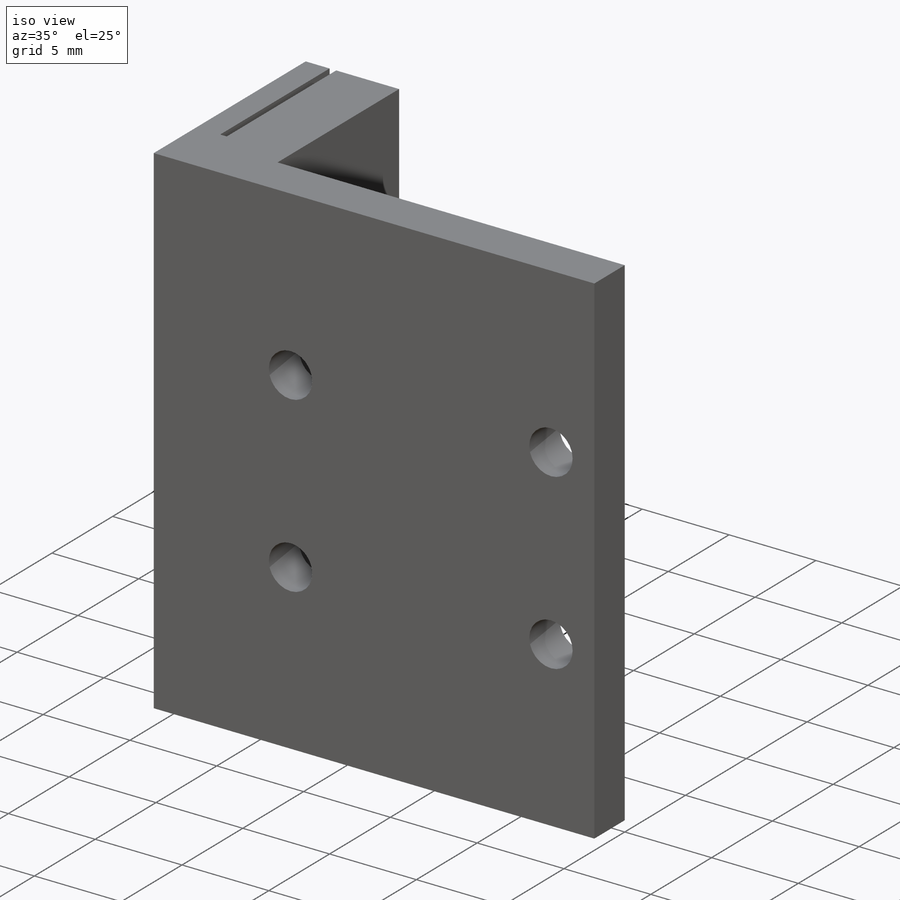
[diagram: iso view]
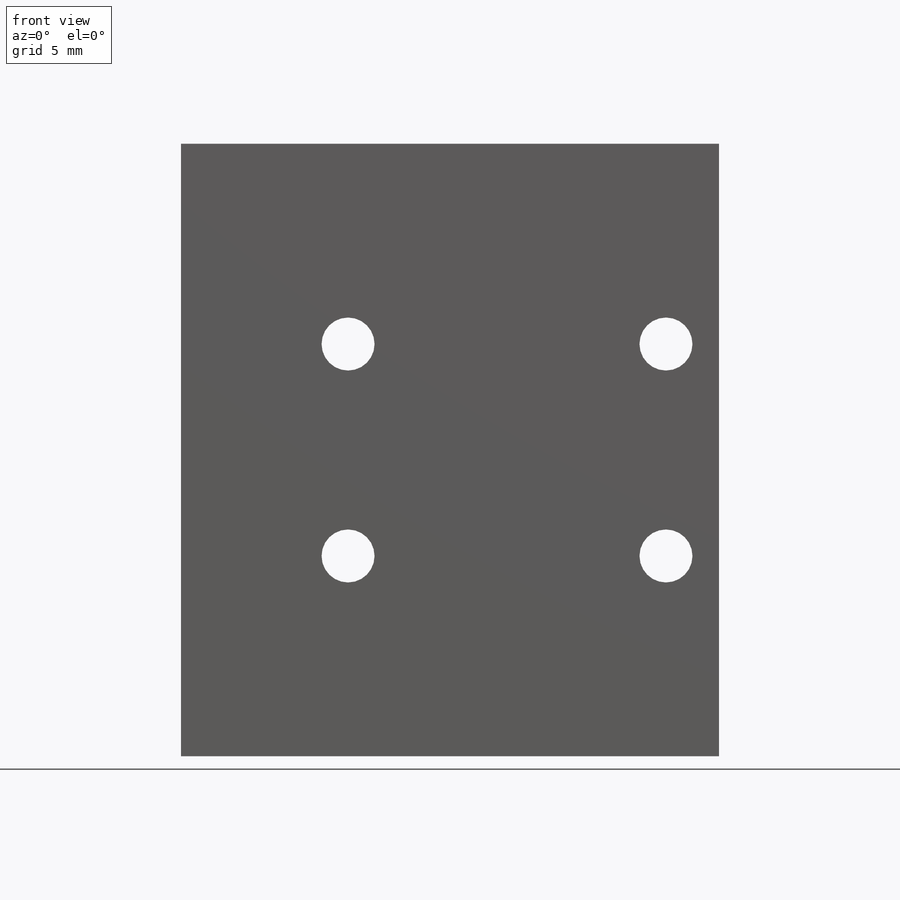
[diagram: front view]
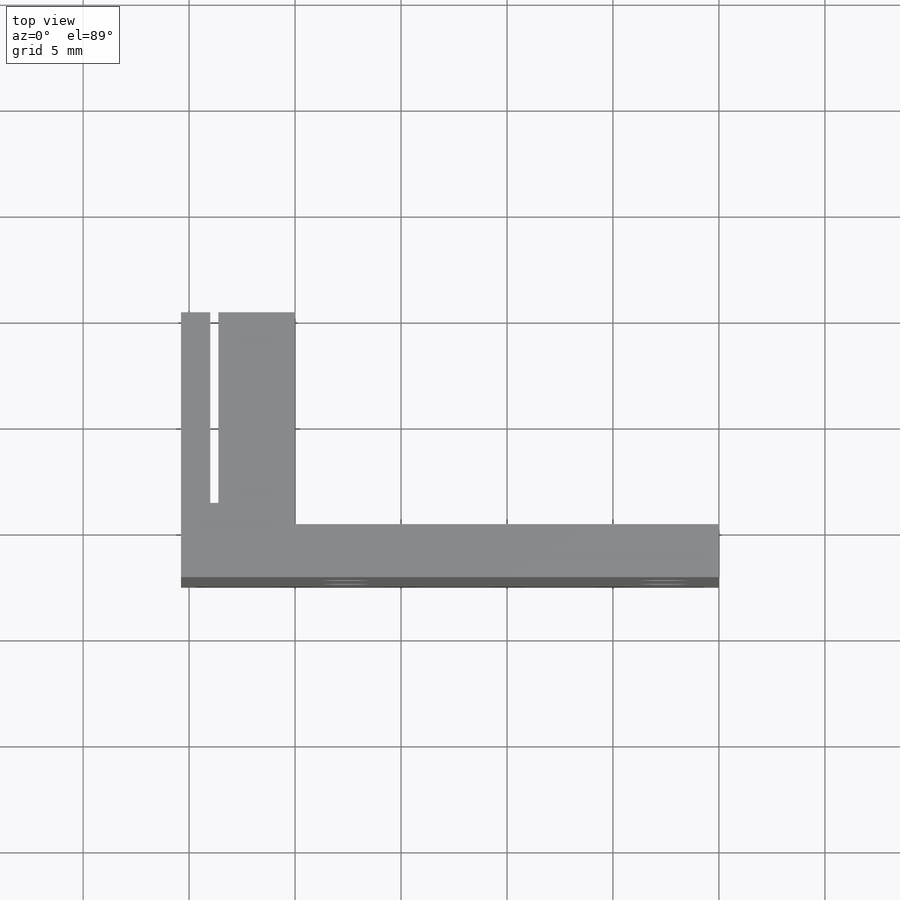
[diagram: top view]
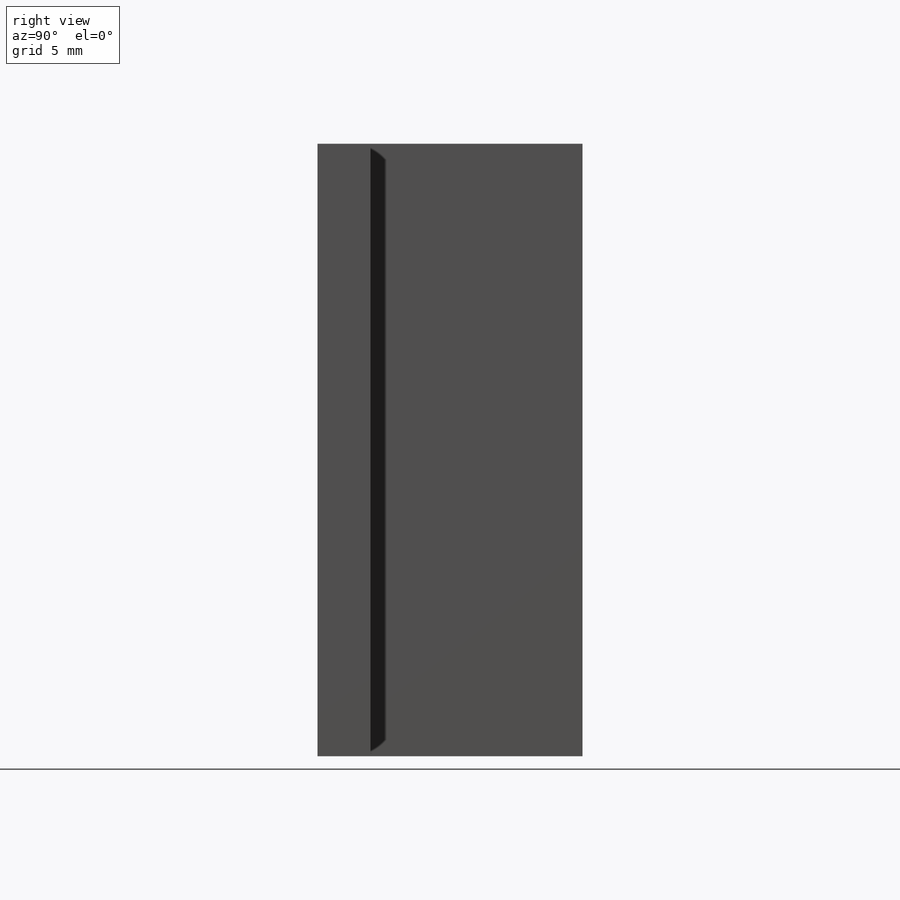
[diagram: right view]
SOLIDWORKS PART (.sldprt)
format: sldprt  version: not decoded by parser v0  size: 299,008 bytes
history: native  units: mm
features: sketch x3, extrude x2, material x1, plane x1, cut_extrude x1, pattern_linear x1, mirror x1 (+13 scaffold rows collapsed)
feature tree (23):
  scaffold x13  (default folders/planes/origin — collapsed)
  material  "Material <not specified>"
  sketch  "Sketch1"  dims[c1.D1=2.5mm c1.D2=2.5mm c2.D1=15.0mm c2.D2=10.0mm]
  extrude  "Boss-Extrude1"  Depth=2.5mm
  plane  "Plane1"
  sketch  "Sketch3"  dims[D1=12.5mm]
  extrude  "Boss-Extrude2"  Depth=5.38mm
  sketch  "Sketch4"  dims[c1.D3=~0.56642mm c1.D2=2.5mm c2.D3=~0.96012mm c2.D2=~1.97346mm c2.D1=~3.16382mm]
  cut_extrude  "Cut-Extrude1"  Depth=9mm 12=9mm
  pattern_linear  "LPattern1"  Count1=4 Count2=2 Spacing1=10mm Spacing2=10mm
  mirror  "Mirror1"
decode coverage: 7 of 8 modeling features carry decoded parameters
note: ~ marks probable driven/reference dimensions
note: suppression state not decoded; provenance and decode notes live in map.json
